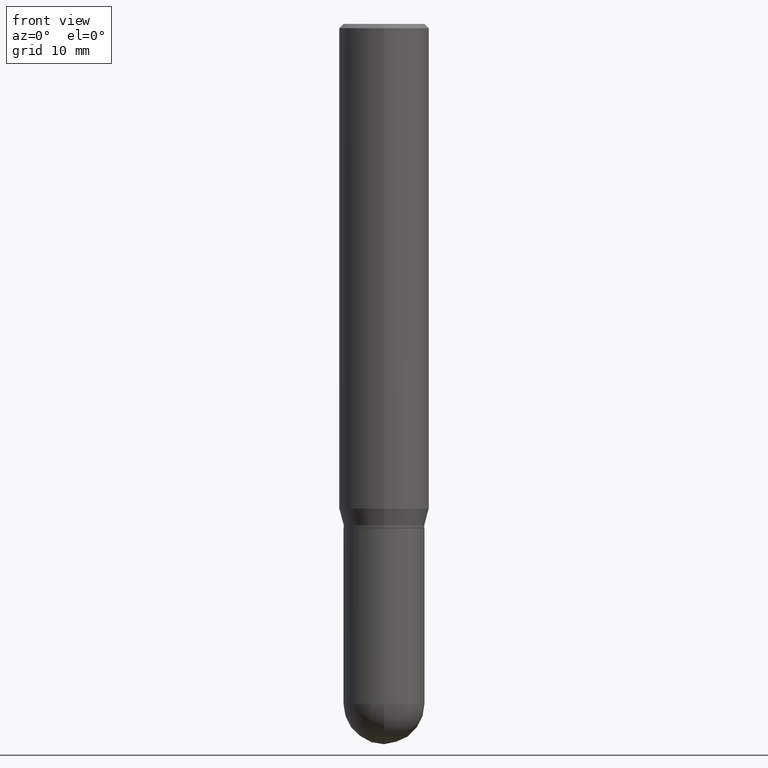
[diagram: clean part render]
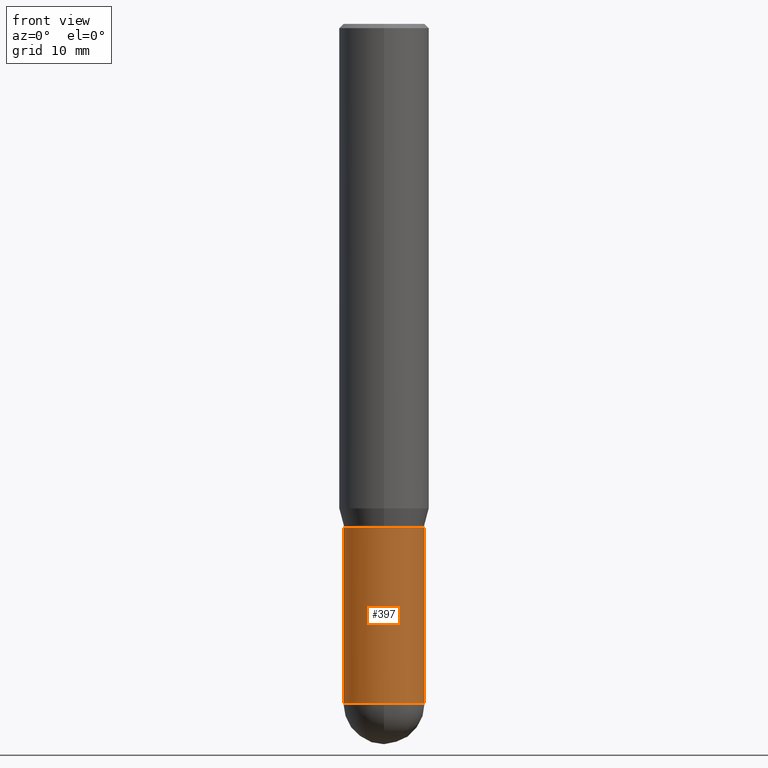
[diagram: same view with one face highlighted and labeled with its STEP entity id]
A machine part, front view. The second image highlights one B-rep face of the part: STEP entity #397.
In plain terms, the highlighted cylindrical surface (partial cylindrical patch) has radius 3.5712 mm, axis along (-0, 0, 1).
Its self-contained STEP definition (entity closure, byte-faithful):
#5 = CARTESIAN_POINT ( 'NONE',  ( -0.1406000000000000583, -6.174923620442310269E-15, -2.359399999999999942 ) ) ;
#11 = ORIENTED_EDGE ( 'NONE', *, *, #274, .T. ) ;
#16 = DIRECTION ( 'NONE',  ( 1.000000000000000000, -6.982962677686270655E-15, 0.000000000000000000 ) ) ;
#17 = CYLINDRICAL_SURFACE ( 'NONE', #41, 0.1406000000000000028 ) ;
#29 = CARTESIAN_POINT ( 'NONE',  ( 0.000000000000000000, 0.000000000000000000, 0.000000000000000000 ) ) ;
#36 = CARTESIAN_POINT ( 'NONE',  ( 0.1406000000000000028, -9.818045524826893030E-16, 6.855904546769086274E-30 ) ) ;
#38 = CARTESIAN_POINT ( 'NONE',  ( -0.1406000000000000028, 9.990230864787008809E-16, -6.916022736898399140E-30 ) ) ;
#41 = AXIS2_PLACEMENT_3D ( 'NONE', #29, #74, #260 ) ;
#55 = CARTESIAN_POINT ( 'NONE',  ( 5.769839101313211634E-29, -8.237801070866517629E-15, -2.359399999999999942 ) ) ;
#61 = CARTESIAN_POINT ( 'NONE',  ( -0.1406000000000000028, -6.174923620442310269E-15, -1.750000000000000222 ) ) ;
#74 = DIRECTION ( 'NONE',  ( -2.445468806185136597E-29, 3.491481338843145583E-15, 1.000000000000000000 ) ) ;
#92 = CARTESIAN_POINT ( 'NONE',  ( 0.1406000000000000028, -7.091896895458194566E-15, -1.750000000000000222 ) ) ;
#103 = CARTESIAN_POINT ( 'NONE',  ( 4.279570410823989044E-29, -6.110092342975505460E-15, -1.750000000000000222 ) ) ;
#126 = CIRCLE ( 'NONE', #303, 0.1406000000000000305 ) ;
#132 = VERTEX_POINT ( 'NONE', #463 ) ;
#143 = VECTOR ( 'NONE', #174, 39.37007874015748143 ) ;
#150 = CIRCLE ( 'NONE', #388, 0.1406000000000000028 ) ;
#173 = VERTEX_POINT ( 'NONE', #92 ) ;
#174 = DIRECTION ( 'NONE',  ( -2.445468806185136877E-29, 3.491481338843145188E-15, 1.000000000000000000 ) ) ;
#180 = CARTESIAN_POINT ( 'NONE',  ( 5.769839101313211634E-29, -8.237801070866517629E-15, -2.359399999999999942 ) ) ;
#209 = VECTOR ( 'NONE', #464, 39.37007874015748143 ) ;
#230 = VERTEX_POINT ( 'NONE', #5 ) ;
#232 = EDGE_CURVE ( 'NONE', #132, #423, #126, .T. ) ;
#247 = DIRECTION ( 'NONE',  ( 1.000000000000000000, -6.982962677686265133E-15, 0.000000000000000000 ) ) ;
#255 = FACE_OUTER_BOUND ( 'NONE', #319, .T. ) ;
#260 = DIRECTION ( 'NONE',  ( 1.000000000000000000, -6.982962677686268288E-15, 4.876176775795936353E-29 ) ) ;
#274 = EDGE_CURVE ( 'NONE', #230, #132, #372, .T. ) ;
#277 = LINE ( 'NONE', #38, #209 ) ;
#282 = ORIENTED_EDGE ( 'NONE', *, *, #232, .T. ) ;
#303 = AXIS2_PLACEMENT_3D ( 'NONE', #180, #398, #484 ) ;
#311 = VERTEX_POINT ( 'NONE', #61 ) ;
#319 = EDGE_LOOP ( 'NONE', ( #329, #11, #282, #505, #465 ) ) ;
#329 = ORIENTED_EDGE ( 'NONE', *, *, #479, .F. ) ;
#368 = DIRECTION ( 'NONE',  ( -2.445468806185136597E-29, 3.491481338843145583E-15, 1.000000000000000000 ) ) ;
#370 = EDGE_CURVE ( 'NONE', #423, #173, #383, .T. ) ;
#372 = CIRCLE ( 'NONE', #400, 0.1406000000000000305 ) ;
#381 = EDGE_CURVE ( 'NONE', #311, #173, #150, .T. ) ;
#383 = LINE ( 'NONE', #36, #143 ) ;
#388 = AXIS2_PLACEMENT_3D ( 'NONE', #103, #445, #247 ) ;
#397 = ADVANCED_FACE ( 'NONE', ( #255 ), #17, .T. ) ;
#398 = DIRECTION ( 'NONE',  ( -2.445468806185136597E-29, 3.491481338843145583E-15, 1.000000000000000000 ) ) ;
#400 = AXIS2_PLACEMENT_3D ( 'NONE', #55, #368, #16 ) ;
#423 = VERTEX_POINT ( 'NONE', #461 ) ;
#445 = DIRECTION ( 'NONE',  ( -2.445468806185136597E-29, 3.491481338843145583E-15, 1.000000000000000000 ) ) ;
#461 = CARTESIAN_POINT ( 'NONE',  ( 0.1406000000000000583, -8.155751259403701439E-15, -2.359399999999999942 ) ) ;
#463 = CARTESIAN_POINT ( 'NONE',  ( -9.990230864786434913E-16, -0.1406000000000083017, -2.359399999999999498 ) ) ;
#464 = DIRECTION ( 'NONE',  ( -2.445468806185136877E-29, 3.491481338843145188E-15, 1.000000000000000000 ) ) ;
#465 = ORIENTED_EDGE ( 'NONE', *, *, #381, .F. ) ;
#479 = EDGE_CURVE ( 'NONE', #230, #311, #277, .T. ) ;
#484 = DIRECTION ( 'NONE',  ( 1.000000000000000000, -6.982962677686270655E-15, 0.000000000000000000 ) ) ;
#505 = ORIENTED_EDGE ( 'NONE', *, *, #370, .T. ) ;